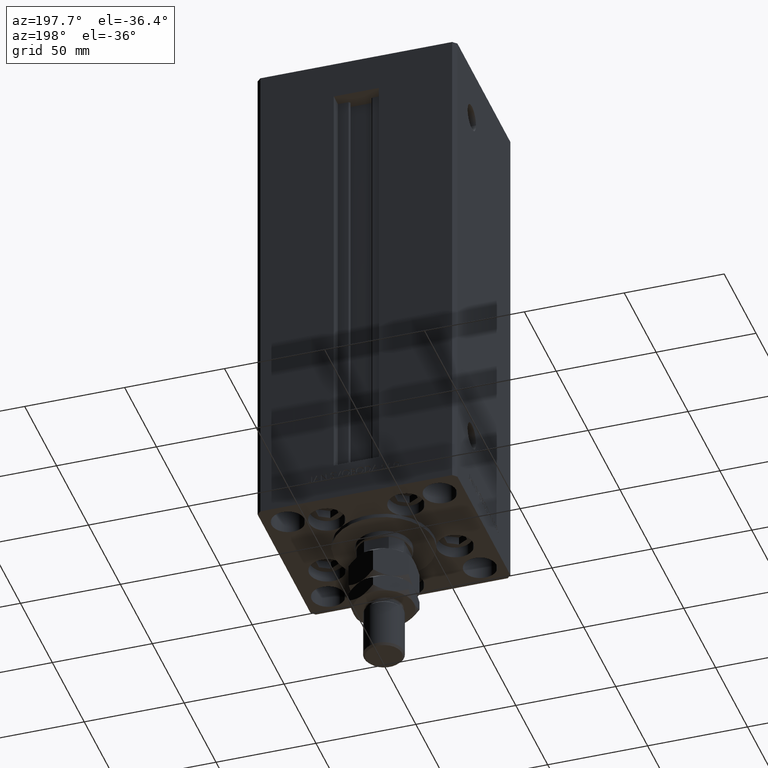
[diagram: clean part render]
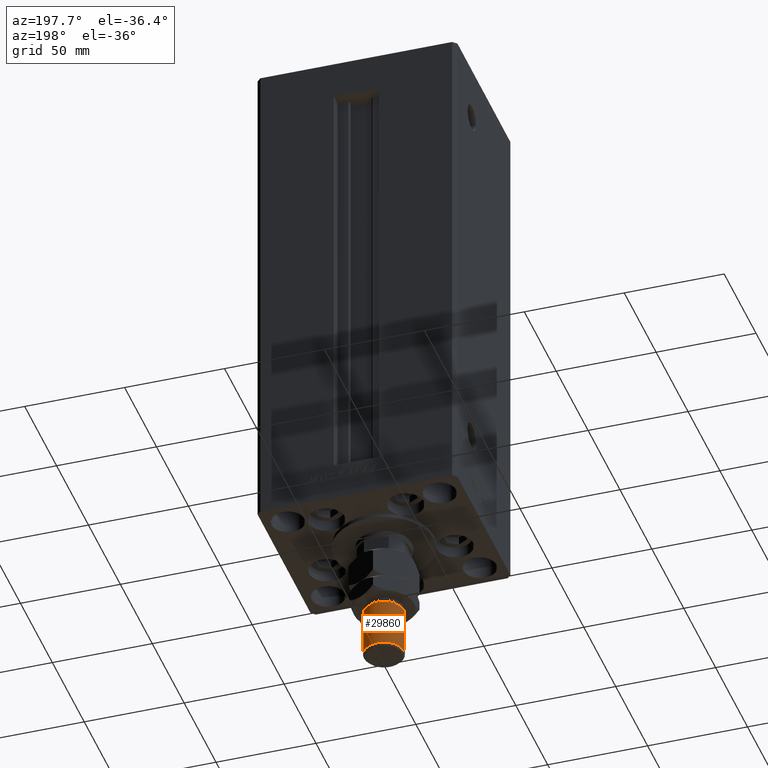
[diagram: same view with one face highlighted and labeled with its STEP entity id]
A machine part, auxiliary view. The second image highlights one B-rep face of the part: STEP entity #29860.
In plain terms, the highlighted cylindrical surface (edge-blend (fillet) strip) has radius 10 mm, axis along (0, -0, 1).
Its self-contained STEP definition (entity closure, byte-faithful):
#1995 = LINE ( 'NONE', #30481, #19680 ) ;
#2806 = ORIENTED_EDGE ( 'NONE', *, *, #43246, .T. ) ;
#3577 = ORIENTED_EDGE ( 'NONE', *, *, #42316, .T. ) ;
#6346 = LINE ( 'NONE', #9992, #48001 ) ;
#6440 = DIRECTION ( 'NONE',  ( 1.000000000000000000, 0.000000000000000000, 0.000000000000000000 ) ) ;
#7599 = DIRECTION ( 'NONE',  ( -1.000000000000000000, 0.000000000000000000, 0.000000000000000000 ) ) ;
#8921 = AXIS2_PLACEMENT_3D ( 'NONE', #29474, #45431, #44418 ) ;
#9821 = EDGE_CURVE ( 'NONE', #17744, #26030, #6346, .T. ) ;
#9992 = CARTESIAN_POINT ( 'NONE',  ( -10.00000000000000000, 0.000000000000000000, 53.00000000000000711 ) ) ;
#11887 = VERTEX_POINT ( 'NONE', #15245 ) ;
#14324 = AXIS2_PLACEMENT_3D ( 'NONE', #31386, #35568, #7599 ) ;
#15245 = CARTESIAN_POINT ( 'NONE',  ( 10.00000000000000000, 1.224646799147353059E-15, 52.00000000000004974 ) ) ;
#15414 = FACE_OUTER_BOUND ( 'NONE', #21267, .T. ) ;
#17216 = ORIENTED_EDGE ( 'NONE', *, *, #9821, .F. ) ;
#17744 = VERTEX_POINT ( 'NONE', #39994 ) ;
#18435 = DIRECTION ( 'NONE',  ( -0.000000000000000000, -0.000000000000000000, 1.000000000000000000 ) ) ;
#19170 = CARTESIAN_POINT ( 'NONE',  ( -10.00000000000000000, 0.000000000000000000, 28.00000000000002487 ) ) ;
#19680 = VECTOR ( 'NONE', #28716, 1000.000000000000000 ) ;
#20494 = AXIS2_PLACEMENT_3D ( 'NONE', #21825, #18435, #6440 ) ;
#21267 = EDGE_LOOP ( 'NONE', ( #50031, #2806, #3577, #17216 ) ) ;
#21825 = CARTESIAN_POINT ( 'NONE',  ( 0.000000000000000000, 0.000000000000000000, 28.00000000000002487 ) ) ;
#26030 = VERTEX_POINT ( 'NONE', #19170 ) ;
#28716 = DIRECTION ( 'NONE',  ( -0.000000000000000000, -0.000000000000000000, -1.000000000000000000 ) ) ;
#29474 = CARTESIAN_POINT ( 'NONE',  ( 0.000000000000000000, 0.000000000000000000, 52.00000000000004974 ) ) ;
#29860 = ADVANCED_FACE ( 'NONE', ( #15414 ), #35302, .T. ) ;
#30481 = CARTESIAN_POINT ( 'NONE',  ( 10.00000000000000000, 1.224646799147353059E-15, 53.00000000000000711 ) ) ;
#31386 = CARTESIAN_POINT ( 'NONE',  ( 0.000000000000000000, 0.000000000000000000, 53.00000000000000711 ) ) ;
#31480 = CIRCLE ( 'NONE', #8921, 10.00000000000000000 ) ;
#35302 = CYLINDRICAL_SURFACE ( 'NONE', #14324, 10.00000000000000000 ) ;
#35568 = DIRECTION ( 'NONE',  ( -0.000000000000000000, -0.000000000000000000, -1.000000000000000000 ) ) ;
#37207 = CIRCLE ( 'NONE', #20494, 10.00000000000000000 ) ;
#38502 = DIRECTION ( 'NONE',  ( -0.000000000000000000, -0.000000000000000000, -1.000000000000000000 ) ) ;
#39994 = CARTESIAN_POINT ( 'NONE',  ( -10.00000000000000000, 0.000000000000000000, 52.00000000000004974 ) ) ;
#41157 = VERTEX_POINT ( 'NONE', #47383 ) ;
#42316 = EDGE_CURVE ( 'NONE', #41157, #26030, #37207, .T. ) ;
#43246 = EDGE_CURVE ( 'NONE', #11887, #41157, #1995, .T. ) ;
#44418 = DIRECTION ( 'NONE',  ( 1.000000000000000000, 0.000000000000000000, 0.000000000000000000 ) ) ;
#45431 = DIRECTION ( 'NONE',  ( 0.000000000000000000, 0.000000000000000000, -1.000000000000000000 ) ) ;
#47383 = CARTESIAN_POINT ( 'NONE',  ( 10.00000000000000000, 1.224646799147353059E-15, 28.00000000000002487 ) ) ;
#48001 = VECTOR ( 'NONE', #38502, 1000.000000000000000 ) ;
#49003 = EDGE_CURVE ( 'NONE', #17744, #11887, #31480, .T. ) ;
#50031 = ORIENTED_EDGE ( 'NONE', *, *, #49003, .T. ) ;